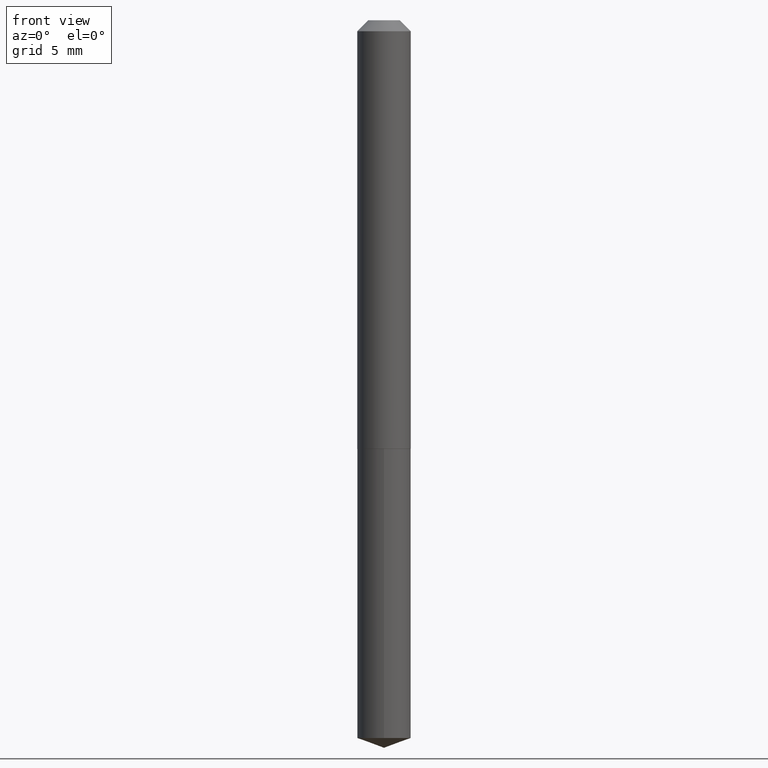
[diagram: clean part render]
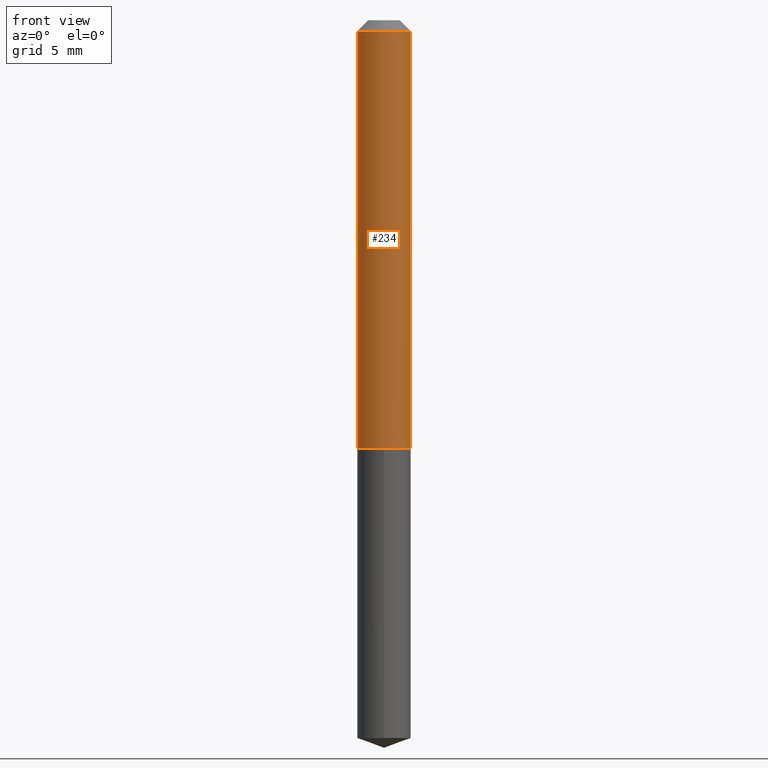
[diagram: same view with one face highlighted and labeled with its STEP entity id]
A machine part, front view. The second image highlights one B-rep face of the part: STEP entity #234.
In plain terms, the highlighted cylindrical surface (edge-blend (fillet) strip) has radius 1.9304 mm, axis along (-0, 0, 1).
Its self-contained STEP definition (entity closure, byte-faithful):
#45 = DIRECTION ( 'NONE',  ( -2.445468806185136877E-29, 3.491481338843145188E-15, 1.000000000000000000 ) ) ;
#46 = ORIENTED_EDGE ( 'NONE', *, *, #289, .F. ) ;
#49 = CARTESIAN_POINT ( 'NONE',  ( -0.07600000000000006750, 5.400124791776766209E-16, -3.738390668593732200E-30 ) ) ;
#52 = CARTESIAN_POINT ( 'NONE',  ( 0.000000000000000000, 0.000000000000000000, 0.000000000000000000 ) ) ;
#54 = DIRECTION ( 'NONE',  ( 1.000000000000000000, -6.982962677686265922E-15, 0.000000000000000000 ) ) ;
#72 = ORIENTED_EDGE ( 'NONE', *, *, #149, .T. ) ;
#80 = CARTESIAN_POINT ( 'NONE',  ( 7.642090019328602662E-31, -1.091087918388490267E-16, -0.03125000000000020817 ) ) ;
#91 = DIRECTION ( 'NONE',  ( 1.000000000000000000, -6.982962677686269077E-15, 0.000000000000000000 ) ) ;
#101 = LINE ( 'NONE', #300, #383 ) ;
#104 = CARTESIAN_POINT ( 'NONE',  ( 0.07599999999999999811, -6.398139553430053154E-16, -0.03125000000000020817 ) ) ;
#106 = LINE ( 'NONE', #49, #299 ) ;
#147 = CIRCLE ( 'NONE', #361, 0.07600000000000013689 ) ;
#149 = EDGE_CURVE ( 'NONE', #232, #247, #101, .T. ) ;
#154 = CARTESIAN_POINT ( 'NONE',  ( -0.07599999999999999811, -1.633871089419536487E-15, -0.03125000000000020817 ) ) ;
#171 = AXIS2_PLACEMENT_3D ( 'NONE', #80, #348, #54 ) ;
#194 = AXIS2_PLACEMENT_3D ( 'NONE', #52, #242, #282 ) ;
#209 = EDGE_CURVE ( 'NONE', #220, #232, #147, .T. ) ;
#210 = VERTEX_POINT ( 'NONE', #154 ) ;
#220 = VERTEX_POINT ( 'NONE', #279 ) ;
#226 = DIRECTION ( 'NONE',  ( -2.445468806185136877E-29, 3.491481338843145188E-15, 1.000000000000000000 ) ) ;
#228 = EDGE_LOOP ( 'NONE', ( #306, #336, #72, #46 ) ) ;
#232 = VERTEX_POINT ( 'NONE', #273 ) ;
#234 = ADVANCED_FACE ( 'NONE', ( #245 ), #369, .T. ) ;
#242 = DIRECTION ( 'NONE',  ( -2.445468806185136597E-29, 3.491481338843145583E-15, 1.000000000000000000 ) ) ;
#245 = FACE_OUTER_BOUND ( 'NONE', #228, .T. ) ;
#247 = VERTEX_POINT ( 'NONE', #104 ) ;
#256 = CIRCLE ( 'NONE', #171, 0.07599999999999999811 ) ;
#261 = DIRECTION ( 'NONE',  ( -2.445468806185136597E-29, 3.491481338843145583E-15, 1.000000000000000000 ) ) ;
#273 = CARTESIAN_POINT ( 'NONE',  ( 0.07600000000000013689, -4.769363508859736288E-15, -1.213999999999999968 ) ) ;
#279 = CARTESIAN_POINT ( 'NONE',  ( -0.07600000000000013689, -3.698645866177901283E-15, -1.213999999999999968 ) ) ;
#282 = DIRECTION ( 'NONE',  ( 1.000000000000000000, -6.982962677686267499E-15, 4.876176775795935793E-29 ) ) ;
#284 = EDGE_CURVE ( 'NONE', #220, #210, #106, .T. ) ;
#289 = EDGE_CURVE ( 'NONE', #210, #247, #256, .T. ) ;
#299 = VECTOR ( 'NONE', #226, 39.37007874015748143 ) ;
#300 = CARTESIAN_POINT ( 'NONE',  ( 0.07600000000000006750, -5.307051635041568064E-16, 3.705894349604914454E-30 ) ) ;
#306 = ORIENTED_EDGE ( 'NONE', *, *, #284, .F. ) ;
#327 = CARTESIAN_POINT ( 'NONE',  ( 2.968799130708755855E-29, -4.238658345355578692E-15, -1.213999999999999968 ) ) ;
#336 = ORIENTED_EDGE ( 'NONE', *, *, #209, .T. ) ;
#348 = DIRECTION ( 'NONE',  ( -2.445468806185136597E-29, 3.491481338843145583E-15, 1.000000000000000000 ) ) ;
#361 = AXIS2_PLACEMENT_3D ( 'NONE', #327, #261, #91 ) ;
#369 = CYLINDRICAL_SURFACE ( 'NONE', #194, 0.07600000000000006750 ) ;
#383 = VECTOR ( 'NONE', #45, 39.37007874015748143 ) ;